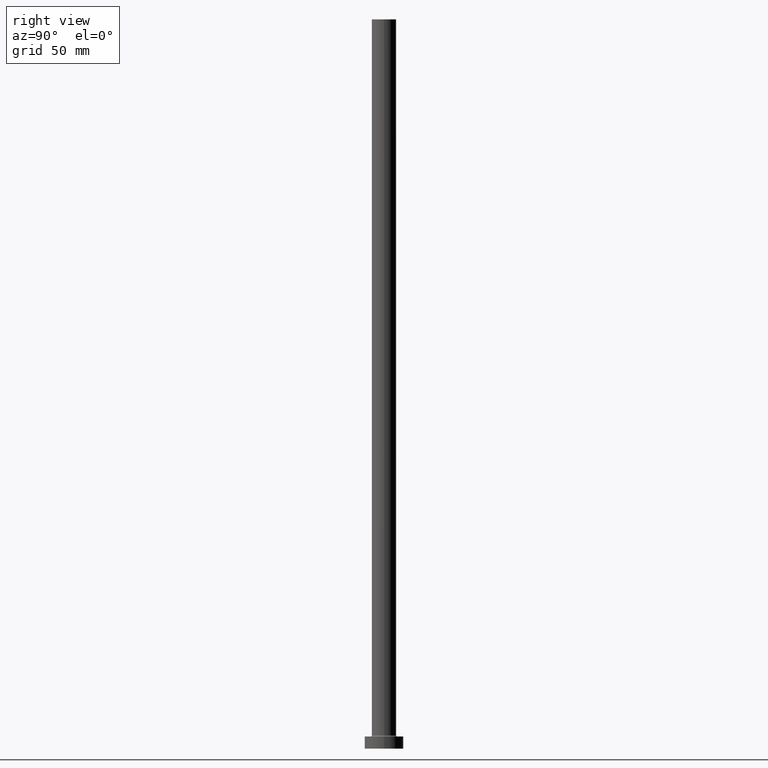
[diagram: clean part render]
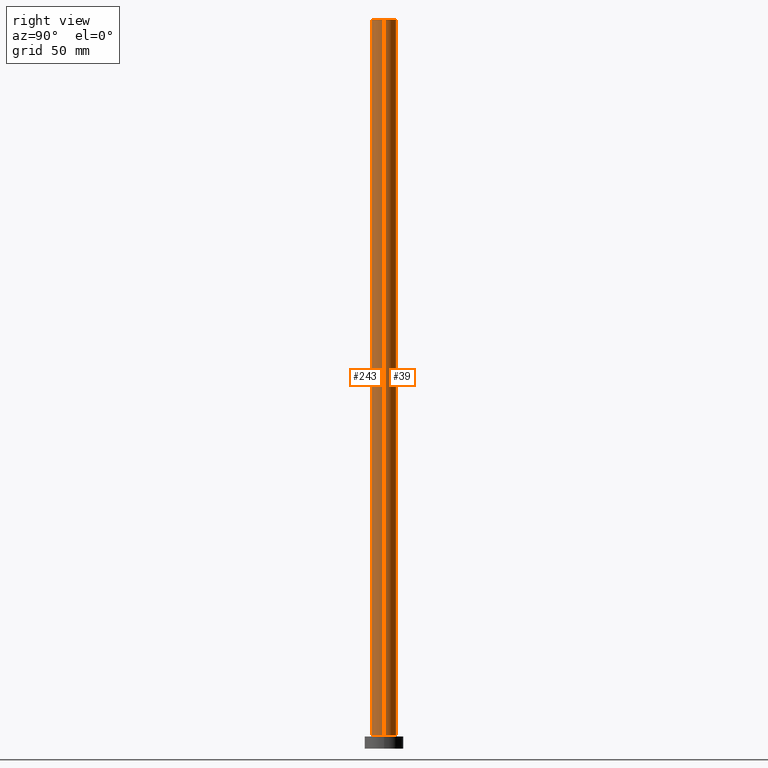
[diagram: same view with one multi-face feature highlighted, each face labeled with its STEP entity id]
A machine part, right view. The highlighted faces form ONE feature: a constant-radius fillet chain: 2 tangent blend faces with common blend radius 5 mm. The faces share edges in the B-rep.
Their STEP definitions:
[1] entity #39 (Cylinder):
#19 = CIRCLE ( 'NONE', #149, 5.000000000000000000 ) ;
#29 = CIRCLE ( 'NONE', #100, 5.000000000000000000 ) ;
#39 = ADVANCED_FACE ( 'NONE', ( #336 ), #79, .T. ) ;
#41 = DIRECTION ( 'NONE',  ( 1.000000000000000000, 0.000000000000000000, 0.000000000000000000 ) ) ;
#51 = LINE ( 'NONE', #198, #274 ) ;
#79 = CYLINDRICAL_SURFACE ( 'NONE', #229, 5.000000000000000000 ) ;
#89 = ORIENTED_EDGE ( 'NONE', *, *, #101, .T. ) ;
#91 = CARTESIAN_POINT ( 'NONE',  ( -5.000000000000000000, 0.000000000000000000, 300.0000000000000000 ) ) ;
#100 = AXIS2_PLACEMENT_3D ( 'NONE', #169, #456, #41 ) ;
#101 = EDGE_CURVE ( 'NONE', #220, #302, #29, .T. ) ;
#142 = CARTESIAN_POINT ( 'NONE',  ( -5.000000000000000000, 0.000000000000000000, 5.500000000000005329 ) ) ;
#149 = AXIS2_PLACEMENT_3D ( 'NONE', #328, #355, #422 ) ;
#160 = CARTESIAN_POINT ( 'NONE',  ( 5.000000000000000000, 6.123233995736766282E-16, 300.0000000000000000 ) ) ;
#167 = ORIENTED_EDGE ( 'NONE', *, *, #239, .T. ) ;
#169 = CARTESIAN_POINT ( 'NONE',  ( 0.000000000000000000, 0.000000000000000000, 5.500000000000005329 ) ) ;
#198 = CARTESIAN_POINT ( 'NONE',  ( -5.000000000000000000, 0.000000000000000000, 300.0000000000000000 ) ) ;
#206 = EDGE_LOOP ( 'NONE', ( #371, #167, #89, #210 ) ) ;
#210 = ORIENTED_EDGE ( 'NONE', *, *, #431, .F. ) ;
#220 = VERTEX_POINT ( 'NONE', #347 ) ;
#229 = AXIS2_PLACEMENT_3D ( 'NONE', #278, #255, #446 ) ;
#239 = EDGE_CURVE ( 'NONE', #443, #220, #326, .T. ) ;
#255 = DIRECTION ( 'NONE',  ( -0.000000000000000000, -0.000000000000000000, -1.000000000000000000 ) ) ;
#271 = EDGE_CURVE ( 'NONE', #443, #399, #19, .T. ) ;
#274 = VECTOR ( 'NONE', #350, 1000.000000000000000 ) ;
#278 = CARTESIAN_POINT ( 'NONE',  ( 0.000000000000000000, 0.000000000000000000, 300.0000000000000000 ) ) ;
#302 = VERTEX_POINT ( 'NONE', #142 ) ;
#318 = CARTESIAN_POINT ( 'NONE',  ( 5.000000000000000000, 6.123233995736766282E-16, 300.0000000000000000 ) ) ;
#324 = DIRECTION ( 'NONE',  ( -0.000000000000000000, -0.000000000000000000, -1.000000000000000000 ) ) ;
#326 = LINE ( 'NONE', #318, #339 ) ;
#328 = CARTESIAN_POINT ( 'NONE',  ( 0.000000000000000000, 0.000000000000000000, 300.0000000000000000 ) ) ;
#336 = FACE_OUTER_BOUND ( 'NONE', #206, .T. ) ;
#339 = VECTOR ( 'NONE', #324, 1000.000000000000000 ) ;
#347 = CARTESIAN_POINT ( 'NONE',  ( 5.000000000000000000, 6.123233995736766282E-16, 5.500000000000005329 ) ) ;
#350 = DIRECTION ( 'NONE',  ( -0.000000000000000000, -0.000000000000000000, -1.000000000000000000 ) ) ;
#355 = DIRECTION ( 'NONE',  ( 0.000000000000000000, 0.000000000000000000, 1.000000000000000000 ) ) ;
#371 = ORIENTED_EDGE ( 'NONE', *, *, #271, .F. ) ;
#399 = VERTEX_POINT ( 'NONE', #91 ) ;
#422 = DIRECTION ( 'NONE',  ( 1.000000000000000000, 0.000000000000000000, 0.000000000000000000 ) ) ;
#431 = EDGE_CURVE ( 'NONE', #399, #302, #51, .T. ) ;
#443 = VERTEX_POINT ( 'NONE', #160 ) ;
#446 = DIRECTION ( 'NONE',  ( -1.000000000000000000, 0.000000000000000000, 0.000000000000000000 ) ) ;
#456 = DIRECTION ( 'NONE',  ( 0.000000000000000000, 0.000000000000000000, 1.000000000000000000 ) ) ;
[2] entity #243 (Cylinder):
#14 = DIRECTION ( 'NONE',  ( 1.000000000000000000, 0.000000000000000000, 0.000000000000000000 ) ) ;
#40 = ORIENTED_EDGE ( 'NONE', *, *, #431, .T. ) ;
#51 = LINE ( 'NONE', #198, #274 ) ;
#57 = ORIENTED_EDGE ( 'NONE', *, *, #356, .T. ) ;
#67 = AXIS2_PLACEMENT_3D ( 'NONE', #80, #441, #240 ) ;
#80 = CARTESIAN_POINT ( 'NONE',  ( 0.000000000000000000, 0.000000000000000000, 300.0000000000000000 ) ) ;
#81 = ORIENTED_EDGE ( 'NONE', *, *, #311, .F. ) ;
#91 = CARTESIAN_POINT ( 'NONE',  ( -5.000000000000000000, 0.000000000000000000, 300.0000000000000000 ) ) ;
#142 = CARTESIAN_POINT ( 'NONE',  ( -5.000000000000000000, 0.000000000000000000, 5.500000000000005329 ) ) ;
#159 = ORIENTED_EDGE ( 'NONE', *, *, #239, .F. ) ;
#160 = CARTESIAN_POINT ( 'NONE',  ( 5.000000000000000000, 6.123233995736766282E-16, 300.0000000000000000 ) ) ;
#180 = FACE_OUTER_BOUND ( 'NONE', #217, .T. ) ;
#198 = CARTESIAN_POINT ( 'NONE',  ( -5.000000000000000000, 0.000000000000000000, 300.0000000000000000 ) ) ;
#217 = EDGE_LOOP ( 'NONE', ( #159, #81, #40, #57 ) ) ;
#220 = VERTEX_POINT ( 'NONE', #347 ) ;
#222 = DIRECTION ( 'NONE',  ( -0.000000000000000000, -0.000000000000000000, -1.000000000000000000 ) ) ;
#225 = CIRCLE ( 'NONE', #67, 5.000000000000000000 ) ;
#235 = CARTESIAN_POINT ( 'NONE',  ( 0.000000000000000000, 0.000000000000000000, 5.500000000000005329 ) ) ;
#239 = EDGE_CURVE ( 'NONE', #443, #220, #326, .T. ) ;
#240 = DIRECTION ( 'NONE',  ( 1.000000000000000000, 0.000000000000000000, 0.000000000000000000 ) ) ;
#243 = ADVANCED_FACE ( 'NONE', ( #180 ), #460, .T. ) ;
#274 = VECTOR ( 'NONE', #350, 1000.000000000000000 ) ;
#291 = DIRECTION ( 'NONE',  ( -1.000000000000000000, 0.000000000000000000, 0.000000000000000000 ) ) ;
#293 = AXIS2_PLACEMENT_3D ( 'NONE', #235, #402, #14 ) ;
#302 = VERTEX_POINT ( 'NONE', #142 ) ;
#311 = EDGE_CURVE ( 'NONE', #399, #443, #225, .T. ) ;
#318 = CARTESIAN_POINT ( 'NONE',  ( 5.000000000000000000, 6.123233995736766282E-16, 300.0000000000000000 ) ) ;
#324 = DIRECTION ( 'NONE',  ( -0.000000000000000000, -0.000000000000000000, -1.000000000000000000 ) ) ;
#326 = LINE ( 'NONE', #318, #339 ) ;
#339 = VECTOR ( 'NONE', #324, 1000.000000000000000 ) ;
#347 = CARTESIAN_POINT ( 'NONE',  ( 5.000000000000000000, 6.123233995736766282E-16, 5.500000000000005329 ) ) ;
#350 = DIRECTION ( 'NONE',  ( -0.000000000000000000, -0.000000000000000000, -1.000000000000000000 ) ) ;
#356 = EDGE_CURVE ( 'NONE', #302, #220, #451, .T. ) ;
#385 = CARTESIAN_POINT ( 'NONE',  ( 0.000000000000000000, 0.000000000000000000, 300.0000000000000000 ) ) ;
#399 = VERTEX_POINT ( 'NONE', #91 ) ;
#402 = DIRECTION ( 'NONE',  ( 0.000000000000000000, 0.000000000000000000, 1.000000000000000000 ) ) ;
#431 = EDGE_CURVE ( 'NONE', #399, #302, #51, .T. ) ;
#441 = DIRECTION ( 'NONE',  ( 0.000000000000000000, 0.000000000000000000, 1.000000000000000000 ) ) ;
#443 = VERTEX_POINT ( 'NONE', #160 ) ;
#451 = CIRCLE ( 'NONE', #293, 5.000000000000000000 ) ;
#459 = AXIS2_PLACEMENT_3D ( 'NONE', #385, #222, #291 ) ;
#460 = CYLINDRICAL_SURFACE ( 'NONE', #459, 5.000000000000000000 ) ;